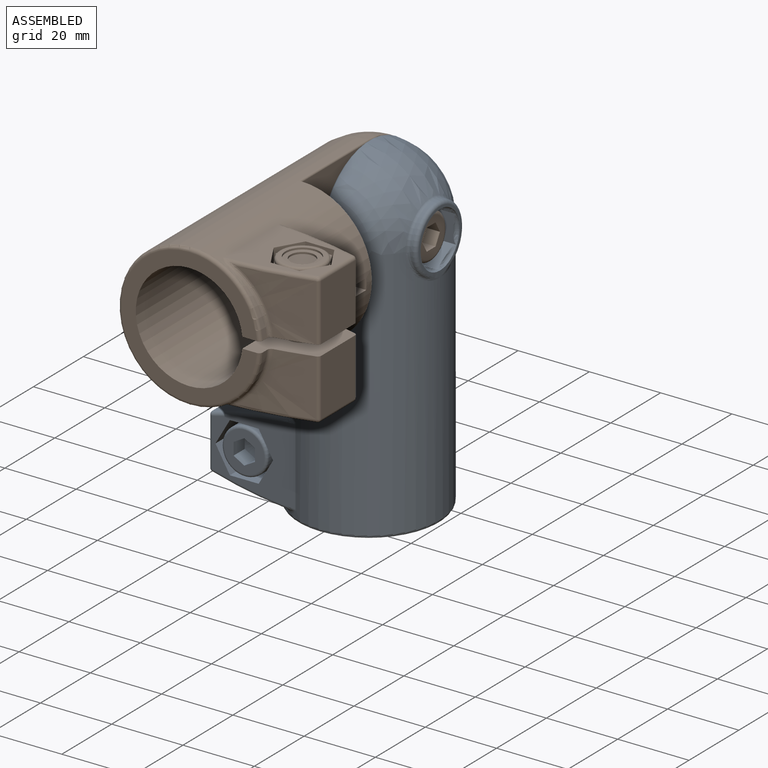
[diagram: assembled view]
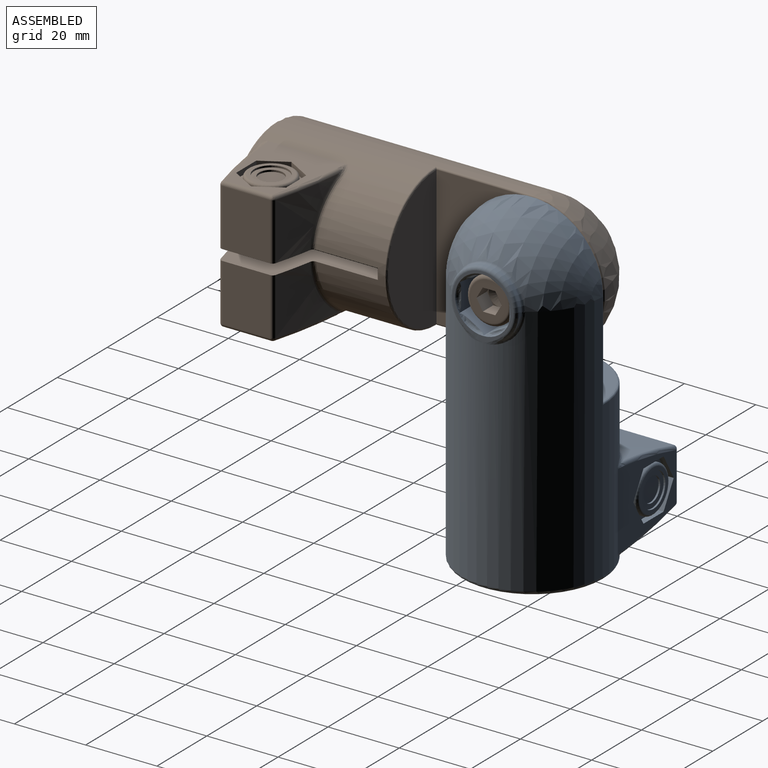
[diagram: assembled view, second angle]
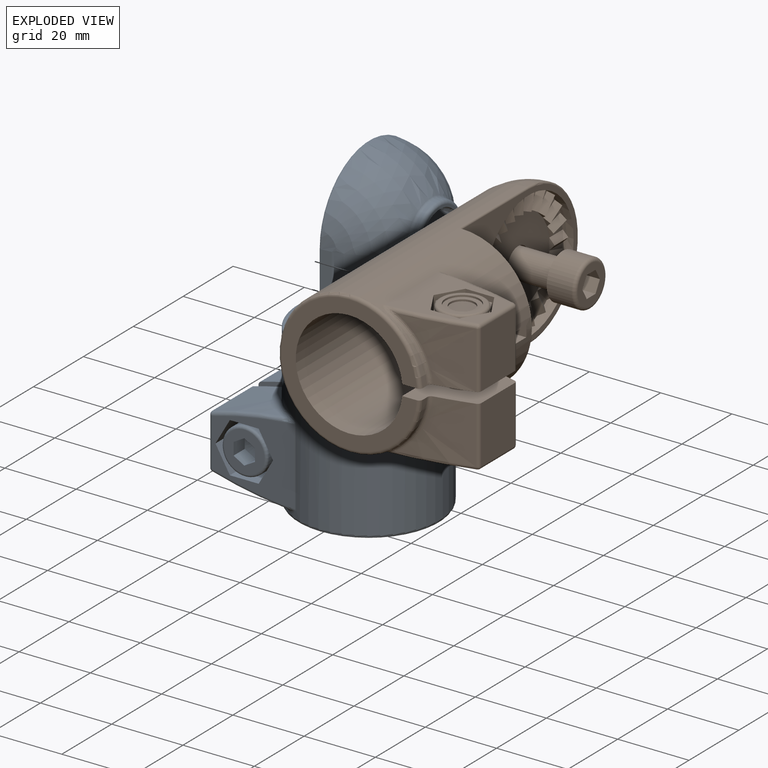
[diagram: exploded view]
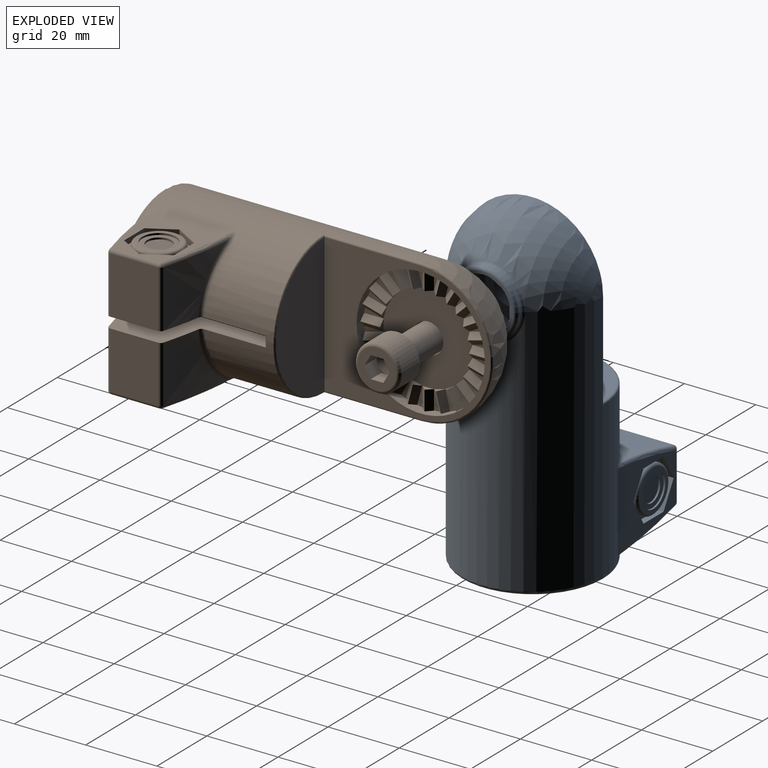
[diagram: exploded view, second angle]
ASSEMBLY  parts=2 mates=2
PART A: 136 faces, bbox 54.6x44.3x94.6 mm
  f0: cylinder r=0.5mm len=27.5mm, axis (0,0,1), area 21.7mm2, adj f1,f2,f18,f41,f48
  f1: torus R=19.5mm, axis (0,0,-1), area 49.2mm2, adj f0,f18,f48,f128
  f2: torus R=19.49mm, axis (1,0,0), area 49.7mm2, adj f0,f19,f41,f128
  f3: torus R=8.5mm, axis (-1,0,0), area 68.3mm2, adj f15,f50,f126,f127,f130,f134
  f4: torus R=19mm, axis (0,0,-1), area 189.1mm2, adj f18,f42,f58,f59
  f5: torus R=6.79mm, axis (1,0,0), area 7.6mm2, adj f39,f50,f56
  f6: cylinder r=3.4mm len=6.8mm, axis (0,-1,0), area 10.7mm2, adj f95,f96
  f7: cylinder r=4.75mm len=9.5mm, axis (0,-1,0), area 14.9mm2, adj f94,f95
  f8: torus R=5.75mm, axis (0,-1,0), area 46.1mm2, adj f9,f94
  f9: cylinder r=6.5mm len=13mm, axis (0,-1,0), area 18.4mm2, adj f8,f23,f24,f25,f26,f27,f28
  f10: cone r=1880.73mm half-angle=62deg, axis (0,-1,0), area 42.7mm2, adj f81,f82,f83,f84,f85,f86
  f11: torus R=5.65mm, axis (0,1,0), area 45.4mm2, adj f13,f73
  f12: cylinder r=4mm len=21mm, axis (0,-1,0), area 527.8mm2, adj f74,f87
  f13: cylinder r=6.4mm len=12.8mm, axis (0,-1,0), area 291.5mm2, adj f11,f30
  f14: cylinder r=15mm len=42.5mm, axis (0,0,-1), area 3877.8mm2, adj f42,f58,f59,f60
  f15: cylinder r=9.5mm len=19mm, axis (1,0,0), area 28.5mm2, adj f3,f131,f133,f135
  f16: cylinder r=12.5mm len=25mm, axis (1,0,0), area 117.8mm2, adj f47,f49
  f17: cylinder r=16.5mm len=33mm, axis (1,0,0), area 155.5mm2, adj f41,f49
  f18: cylinder r=20mm len=71mm, axis (0,0,1), area 5842.3mm2, adj f0,f1,f4,f19,f58,f59,f60,f99
  f19: sphere r=20mm, area 1056.9mm2, adj f2,f18,f133
  f20: cylinder r=4.25mm len=9.5mm, axis (-1,0,0), area 253.7mm2, adj f47,f51
  f21: cylinder r=4.25mm len=9mm, axis (0,-1,0), area 240.3mm2, adj f59,f74
  f22: cylinder r=4.25mm len=9mm, axis (0,-1,0), area 240.3mm2, adj f58,f87
  f23: plane 5.63x3.25mm, normal (0,1,0), area 2.3mm2, adj f9,f89,f90
  f24: plane 5.63x3.25mm, normal (0,1,0), area 2.3mm2, adj f9,f88,f89
  f25: plane 6.5x1.88mm, normal (0,1,0), area 2.3mm2, adj f9,f88,f93
  f26: plane 5.63x3.25mm, normal (0,1,0), area 2.3mm2, adj f9,f92,f93
  f27: plane 5.63x3.25mm, normal (0,1,0), area 2.3mm2, adj f9,f91,f92
  f28: plane 6.5x1.88mm, normal (0,1,0), area 2.3mm2, adj f9,f90,f91
  f29: plane 16.17x14mm, normal (0,1,0), area 23.4mm2, adj f67,f68,f69,f70,f71,f72,f88,f89
  f30: plane 16.17x14mm, normal (0,-1,0), area 41.1mm2, adj f13,f61,f62,f63,f64,f65,f66
  f31: plane 23.21x21.47mm, normal (0,1,0), area 254.9mm2, adj f67,f68,f69,f70,f71,f72,f100,f101
  f32: cylinder r=116.03mm len=19.76mm, axis (0,1,0), area 220.5mm2, adj f58,f102,f106,f108
  f33: cylinder r=116.03mm len=19.76mm, axis (0,1,0), area 220.5mm2, adj f58,f97,f99,f100
  f34: plane 16x13.49mm, normal (-1,0,0), area 215.8mm2, adj f58,f97,f101,f102
  f35: plane 11.5x7.75mm, normal (0,-0.5,-0.87), area 75mm2, adj f36,f40,f51,f52,f122
  f36: plane 11.5x8.79mm, normal (0,-1,0), area 75mm2, adj f35,f37,f51,f53,f121
  f37: plane 11.5x7.75mm, normal (0,-0.5,0.87), area 75mm2, adj f36,f38,f51,f54,f123
  f38: plane 11.5x7.75mm, normal (0,0.5,0.87), area 75mm2, adj f37,f39,f51,f55,f125
  f39: plane 11.5x8.79mm, normal (0,1,0), area 75mm2, adj f5,f38,f40,f51,f56
  f40: plane 11.5x7.75mm, normal (0,0.5,-0.87), area 75mm2, adj f35,f39,f51,f57,f124
  f41: plane 46.49x38.99mm, normal (-1,0,0), area 794.3mm2, adj f0,f2,f17,f48,f128
  f42: plane 38x37.94mm, normal (0,0,-1), area 415.2mm2, adj f4,f14,f58,f59
  f43: cylinder r=116.03mm len=19.76mm, axis (0,1,0), area 220.5mm2, adj f59,f111,f117,f120
  f44: cylinder r=116.03mm len=19.76mm, axis (0,1,0), area 220.5mm2, adj f59,f109,f113,f114
  f45: plane 16x13.49mm, normal (-1,0,0), area 215.8mm2, adj f59,f109,f111,f112
  f46: plane 23.21x21.47mm, normal (0,-1,0), area 254.9mm2, adj f61,f62,f63,f64,f65,f66,f112,f113
  f47: plane 25x25mm, normal (-1,0,0), area 434.1mm2, adj f16,f20
  f48: plane 39x19.5mm, normal (0,0,1), area 597.3mm2, adj f0,f1,f41,f128
  f49: plane 33x33mm, normal (-1,0,0), area 364.4mm2, adj f16,f17
  f50: plane 18.28x17.28mm, normal (1,0,0), area 40.7mm2, adj f3,f5,f121,f122,f123,f124,f125,f126
  f51: plane 15.59x13.5mm, normal (1,0,0), area 101.1mm2, adj f20,f35,f36,f37,f38,f39,f40
  f52: plane 1.34x0.77mm, normal (1,0,0), area 0mm2, adj f35,f122
  f53: plane 1.55x0.04mm, normal (1,0,0), area 0mm2, adj f36,f121
  f54: plane 1.34x0.77mm, normal (1,0,0), area 0mm2, adj f37,f123
  f55: plane 1.34x0.77mm, normal (1,0,0), area 0mm2, adj f38,f125
  f56: plane 1.55x0.04mm, normal (1,0,0), area 0mm2, adj f5,f39
  f57: plane 1.34x0.77mm, normal (1,0,0), area 0mm2, adj f40,f124
  f58: plane 42.53x17.11mm, normal (0,-1,0), area 373.4mm2, adj f4,f14,f18,f22,f32,f33,f34,f42
  f59: plane 42.53x17.11mm, normal (0,1,0), area 373.4mm2, adj f4,f14,f18,f21,f42,f43,f44,f45
  f60: plane 35x30mm, normal (0,0,-1), area 721.9mm2, adj f14,f18,f58,f59
  f61: plane 8x7mm, normal (0.87,0,-0.5), area 64.7mm2, adj f30,f46,f62,f66
  f62: plane 8.08x8mm, normal (0,0,-1), area 64.7mm2, adj f30,f46,f61,f63
  f63: plane 8x7mm, normal (-0.87,0,-0.5), area 64.7mm2, adj f30,f46,f62,f64
  f64: plane 8x7mm, normal (-0.87,0,0.5), area 64.7mm2, adj f30,f46,f63,f65
  f65: plane 8.08x8mm, normal (0,0,1), area 64.7mm2, adj f30,f46,f64,f66
  f66: plane 8x7mm, normal (0.87,0,0.5), area 64.7mm2, adj f30,f46,f61,f65
  f67: plane 8x7mm, normal (0.87,0,-0.5), area 64.7mm2, adj f29,f31,f68,f72
  f68: plane 8x7mm, normal (0.87,0,0.5), area 64.7mm2, adj f29,f31,f67,f69
  f69: plane 8.08x8mm, normal (0,0,1), area 64.7mm2, adj f29,f31,f68,f70
  f70: plane 8x7mm, normal (-0.87,0,0.5), area 64.7mm2, adj f29,f31,f69,f71
  f71: plane 8x7mm, normal (-0.87,0,-0.5), area 64.7mm2, adj f29,f31,f70,f72
  f72: plane 8.08x8mm, normal (0,0,-1), area 64.7mm2, adj f29,f31,f67,f71
  f73: plane 11.3x11.3mm, normal (0,-1,0), area 69.1mm2, adj f11,f75,f76,f77,f78,f79,f80
  f74: plane 8.5x8.5mm, normal (0,1,0), area 6.5mm2, adj f12,f21
  f75: plane 4.5x3mm, normal (-0.5,0,-0.87), area 15.6mm2, adj f73,f76,f80,f81
  f76: plane 4.5x3.46mm, normal (-1,0,0), area 15.6mm2, adj f73,f75,f77,f86
  f77: plane 4.5x3mm, normal (-0.5,0,0.87), area 15.6mm2, adj f73,f76,f78,f85
  f78: plane 4.5x3mm, normal (0.5,0,0.87), area 15.6mm2, adj f73,f77,f79,f84
  f79: plane 4.5x3.46mm, normal (1,0,0), area 15.6mm2, adj f73,f78,f80,f83
  f80: plane 4.5x3mm, normal (0.5,0,-0.87), area 15.6mm2, adj f73,f75,f79,f82
  f81: plane 3x1.73mm, normal (0,1,0), area 1.1mm2, adj f10,f75
  f82: plane 3x1.73mm, normal (0,1,0), area 1.1mm2, adj f10,f80
  f83: plane 3.46x0.46mm, normal (0,1,0), area 1.1mm2, adj f10,f79
  f84: plane 3x1.73mm, normal (0,1,0), area 1.1mm2, adj f10,f78
  f85: plane 3x1.73mm, normal (0,1,0), area 1.1mm2, adj f10,f77
  f86: plane 3.46x0.46mm, normal (0,1,0), area 1.1mm2, adj f10,f76
  f87: plane 8.5x8.5mm, normal (0,-1,0), area 6.5mm2, adj f12,f22
  f88: plane 6.8x6.5mm, normal (0.87,0,-0.5), area 51mm2, adj f24,f25,f29,f89,f93
  f89: plane 7.51x6.8mm, normal (0,0,-1), area 51mm2, adj f23,f24,f29,f88,f90
  f90: plane 6.8x6.5mm, normal (-0.87,0,-0.5), area 51mm2, adj f23,f28,f29,f89,f91
  f91: plane 6.8x6.5mm, normal (-0.87,0,0.5), area 51mm2, adj f27,f28,f29,f90,f92
  f92: plane 7.51x6.8mm, normal (0,0,1), area 51mm2, adj f26,f27,f29,f91,f93
  f93: plane 6.8x6.5mm, normal (0.87,0,0.5), area 51mm2, adj f25,f26,f29,f88,f92
  f94: plane 11.5x11.5mm, normal (0,1,0), area 33mm2, adj f7,f8
  f95: plane 9.5x9.5mm, normal (0,1,0), area 34.6mm2, adj f6,f7
  f96: plane 6.8x6.8mm, normal (0,1,0), area 36.3mm2, adj f6
  f97: cylinder r=1mm len=16mm, axis (0,1,0), area 20.8mm2, adj f33,f34,f58,f98
  f98: sphere r=1mm, area 0.9mm2, adj f97,f100,f101
  f99: bspline ~16.07x9.71mm, area 26.9mm2, adj f18,f33,f58,f103
  f100: torus R=115.03mm, axis (0,-1,0), area 34.4mm2, adj f31,f33,f98,f103
  f101: cylinder r=1mm len=13.49mm, axis (0,0,-1), area 21.2mm2, adj f31,f34,f98,f104
  f102: cylinder r=1mm len=16mm, axis (0,1,0), area 20.8mm2, adj f32,f34,f58,f104
  f103: bspline ~4.09x1.9mm, area 4.1mm2, adj f18,f99,f100,f105
  f104: sphere r=1mm, area 0.9mm2, adj f101,f102,f106
  f105: cylinder r=1mm len=21.47mm, axis (0,0,1), area 8.2mm2, adj f18,f31,f103,f107
  f106: torus R=115.03mm, axis (0,-1,0), area 34.4mm2, adj f31,f32,f104,f107
  f107: bspline ~4.09x1.9mm, area 4.1mm2, adj f18,f105,f106,f108
  f108: bspline ~16.07x9.71mm, area 26.9mm2, adj f18,f32,f58,f107
  f109: cylinder r=1mm len=16mm, axis (0,1,0), area 20.8mm2, adj f44,f45,f59,f110
  f110: sphere r=1mm, area 1.3mm2, adj f109,f112,f113
  f111: cylinder r=1mm len=16mm, axis (0,1,0), area 20.8mm2, adj f43,f45,f59,f115
  f112: cylinder r=1mm len=13.49mm, axis (0,0,1), area 21.2mm2, adj f45,f46,f110,f115
  f113: torus R=115.03mm, axis (0,-1,0), area 34.4mm2, adj f44,f46,f110,f116
  f114: bspline ~16.18x9.79mm, area 26.9mm2, adj f18,f44,f59,f116
  f115: sphere r=1mm, area 1.3mm2, adj f111,f112,f117
  f116: bspline ~4.09x1.9mm, area 4.1mm2, adj f18,f113,f114,f118
  f117: torus R=115.03mm, axis (0,-1,0), area 34.4mm2, adj f43,f46,f115,f119
  f118: cylinder r=1mm len=21.47mm, axis (0,0,1), area 8.2mm2, adj f18,f46,f116,f119
  f119: bspline ~4.09x1.9mm, area 4.1mm2, adj f18,f117,f118,f120
  f120: bspline ~16.18x9.79mm, area 26.9mm2, adj f18,f43,f59,f119
  f121: torus R=6.79mm, axis (1,0,0), area 7.6mm2, adj f36,f50,f53
  f122: torus R=6.79mm, axis (1,0,0), area 7.6mm2, adj f35,f50,f52
  f123: torus R=6.79mm, axis (1,0,0), area 7.6mm2, adj f37,f50,f54
  f124: torus R=6.79mm, axis (1,0,0), area 7.6mm2, adj f40,f50,f57
  f125: torus R=6.79mm, axis (1,0,0), area 7.6mm2, adj f38,f50,f55
  f126: bspline ~6.18x3.09mm, area 2.4mm2, adj f3,f50,f132
  f127: bspline ~6.18x3.09mm, area 2.4mm2, adj f3,f50,f129
  f128: cylinder r=0.5mm len=27.5mm, axis (0,0,1), area 21.7mm2, adj f1,f2,f18,f41,f48
  f129: bspline ~6.45x2.47mm, area 2.2mm2, adj f18,f127,f130
  f130: bspline ~2.78x2.34mm, area 3.2mm2, adj f3,f18,f129,f131
  f131: bspline ~5.5x1.99mm, area 6.1mm2, adj f15,f18,f130,f133
  f132: bspline ~6.45x2.47mm, area 2.2mm2, adj f18,f126,f134
  f133: torus R=10.5mm, axis (-1,0,0), area 31.8mm2, adj f15,f19,f131,f135
  f134: bspline ~2.78x2.34mm, area 3.2mm2, adj f3,f18,f132,f135
  f135: bspline ~5.5x1.99mm, area 6.1mm2, adj f15,f18,f133,f134
PART B: 258 faces, bbox 54.6x44.3x94.6 mm
  f0: cylinder r=4mm len=19.5mm, axis (1,0,0), area 490.1mm2, adj f10,f19
  f1: cone r=3.05mm half-angle=62deg, axis (1,0,0), area 33.1mm2, adj f4,f5,f6,f7,f8,f9
  f2: torus R=5.4mm, axis (1,0,0), area 59.6mm2, adj f3,f11
  f3: cylinder r=6.4mm len=12.8mm, axis (-1,0,0), area 281.5mm2, adj f2,f10
  f4: plane 2.64x1.53mm, normal (1,0,0), area 0.5mm2, adj f1,f15,f16
  f5: plane 2.64x1.53mm, normal (1,0,0), area 0.5mm2, adj f1,f14,f15
  f6: plane 3.05x0.88mm, normal (1,0,0), area 0.5mm2, adj f1,f13,f14
  f7: plane 2.64x1.53mm, normal (1,0,0), area 0.5mm2, adj f1,f12,f13
  f8: plane 2.64x1.53mm, normal (1,0,0), area 0.5mm2, adj f1,f12,f17
  f9: plane 3.05x0.88mm, normal (1,0,0), area 0.5mm2, adj f1,f16,f17
  f10: plane 12.8x12.8mm, normal (-1,0,0), area 78.4mm2, adj f0,f3
  f11: plane 10.8x10.8mm, normal (1,0,0), area 59.4mm2, adj f2,f12,f13,f14,f15,f16,f17
  f12: plane 4.2x3.52mm, normal (0,-1,0), area 14.8mm2, adj f7,f8,f11,f13,f17
  f13: plane 4.2x3.05mm, normal (0,-0.5,0.87), area 14.8mm2, adj f6,f7,f11,f12,f14
  f14: plane 4.2x3.05mm, normal (0,0.5,0.87), area 14.8mm2, adj f5,f6,f11,f13,f15
  f15: plane 4.2x3.52mm, normal (0,1,0), area 14.8mm2, adj f4,f5,f11,f14,f16
  f16: plane 4.2x3.05mm, normal (0,0.5,-0.87), area 14.8mm2, adj f4,f9,f11,f15,f17
  f17: plane 4.2x3.05mm, normal (0,-0.5,-0.87), area 14.8mm2, adj f8,f9,f11,f12,f16
  f18: cylinder r=4.38mm len=8.75mm, axis (-1,0,0), area 13.7mm2, adj f22,f47
  f19: cone r=4.5mm half-angle=45deg, axis (1,0,0), area 18.9mm2, adj f0,f48
  f20: torus R=5.2mm, axis (-1,0,0), area 74mm2, adj f21,f22
  f21: cylinder r=6.45mm len=12.9mm, axis (1,0,0), area 30.4mm2, adj f20,f35,f36,f37,f38,f39,f40
  f22: plane 10.4x10.4mm, normal (-1,0,0), area 24.8mm2, adj f18,f20
  f23: cone r=6.45mm half-angle=45deg, axis (-1,0,0), area 3.1mm2, adj f30,f41,f46,f170
  f24: cone r=6.45mm half-angle=45deg, axis (-1,0,0), area 3.1mm2, adj f29,f45,f46,f170
  f25: cone r=6.45mm half-angle=45deg, axis (-1,0,0), area 3.1mm2, adj f31,f44,f45,f170
  f26: cone r=6.45mm half-angle=45deg, axis (-1,0,0), area 3.1mm2, adj f32,f43,f44,f170
  f27: cone r=6.45mm half-angle=45deg, axis (-1,0,0), area 3.1mm2, adj f33,f42,f43,f170
  f28: cone r=6.45mm half-angle=45deg, axis (-1,0,0), area 3.1mm2, adj f34,f41,f42,f170
  f29: cylinder r=7.3mm len=4.1mm, axis (1,0,0), area 2.2mm2, adj f24,f35,f45,f46
  f30: cylinder r=7.3mm len=4.1mm, axis (1,0,0), area 2.2mm2, adj f23,f36,f41,f46
  f31: cylinder r=7.3mm len=4.1mm, axis (1,0,0), area 2.2mm2, adj f25,f37,f44,f45
  f32: cylinder r=7.3mm len=4.1mm, axis (1,0,0), area 2.2mm2, adj f26,f38,f43,f44
  f33: cylinder r=7.3mm len=4.1mm, axis (1,0,0), area 2.2mm2, adj f27,f39,f42,f43
  f34: cylinder r=7.3mm len=4.1mm, axis (1,0,0), area 2.2mm2, adj f28,f40,f41,f42
  f35: cone r=7.3mm half-angle=45deg, axis (1,0,0), area 3.1mm2, adj f21,f29,f45,f46
  f36: cone r=7.3mm half-angle=45deg, axis (1,0,0), area 3.1mm2, adj f21,f30,f41,f46
  f37: cone r=7.3mm half-angle=45deg, axis (1,0,0), area 3.1mm2, adj f21,f31,f44,f45
  f38: cone r=7.3mm half-angle=45deg, axis (1,0,0), area 3.1mm2, adj f21,f32,f43,f44
  f39: cone r=7.3mm half-angle=45deg, axis (1,0,0), area 3.1mm2, adj f21,f33,f42,f43
  f40: cone r=7.3mm half-angle=45deg, axis (1,0,0), area 3.1mm2, adj f21,f34,f41,f42
  f41: plane 6.84x5.8mm, normal (0,-1,0), area 35.7mm2, adj f23,f28,f30,f34,f36,f40
  f42: plane 5.92x5.8mm, normal (0,-0.5,0.87), area 35.7mm2, adj f27,f28,f33,f34,f39,f40
  f43: plane 5.92x5.8mm, normal (0,0.5,0.87), area 35.7mm2, adj f26,f27,f32,f33,f38,f39
  f44: plane 6.84x5.8mm, normal (0,1,0), area 35.7mm2, adj f25,f26,f31,f32,f37,f38
  f45: plane 5.92x5.8mm, normal (0,0.5,-0.87), area 35.7mm2, adj f24,f25,f29,f31,f35,f37
  f46: plane 5.92x5.8mm, normal (0,-0.5,-0.87), area 35.7mm2, adj f23,f24,f29,f30,f35,f36
  f47: plane 8.75x8.75mm, normal (-1,0,0), area 9.9mm2, adj f18,f257
  f48: plane 9x9mm, normal (-1,0,0), area 6.9mm2, adj f19,f68
  f49: cylinder r=0.5mm len=27.5mm, axis (0,0,-1), area 21.7mm2, adj f50,f51,f66,f94,f95
  f50: torus R=19.5mm, axis (0,0,1), area 49.2mm2, adj f49,f66,f95,f247
  f51: torus R=19.49mm, axis (-1,0,0), area 49.7mm2, adj f49,f67,f94,f247
  f52: torus R=8.5mm, axis (1,0,0), area 68.3mm2, adj f64,f169,f245,f246,f249,f253
  f53: torus R=19mm, axis (0,0,1), area 189.1mm2, adj f66,f89,f177,f178
  f54: torus R=6.79mm, axis (-1,0,0), area 7.6mm2, adj f87,f169,f175
  f55: cylinder r=3.4mm len=6.8mm, axis (0,-1,0), area 10.7mm2, adj f214,f215
  f56: cylinder r=4.75mm len=9.5mm, axis (0,-1,0), area 14.9mm2, adj f213,f214
  f57: torus R=5.75mm, axis (0,-1,0), area 46.1mm2, adj f58,f213
  f58: cylinder r=6.5mm len=13mm, axis (0,-1,0), area 18.4mm2, adj f57,f71,f72,f73,f74,f75,f76
  f59: cone r=1880.73mm half-angle=62deg, axis (0,-1,0), area 42.7mm2, adj f200,f201,f202,f203,f204,f205
  f60: torus R=5.65mm, axis (0,1,0), area 45.4mm2, adj f62,f192
  f61: cylinder r=4mm len=21mm, axis (0,-1,0), area 527.8mm2, adj f193,f206
  f62: cylinder r=6.4mm len=12.8mm, axis (0,-1,0), area 291.5mm2, adj f60,f78
  f63: cylinder r=15mm len=42.5mm, axis (0,0,1), area 3877.8mm2, adj f89,f177,f178,f179
  f64: cylinder r=9.5mm len=19mm, axis (-1,0,0), area 28.5mm2, adj f52,f250,f252,f254
  f65: cylinder r=18mm len=36mm, axis (1,0,0), area 280.7mm2, adj f94,f96,f98,f99,f101,f102,f104,f105
  f66: cylinder r=20mm len=71mm, axis (0,0,-1), area 5842.3mm2, adj f49,f50,f53,f67,f177,f178,f179,f218
  f67: sphere r=20mm, area 1056.9mm2, adj f51,f66,f252
  f68: cylinder r=4.25mm len=8.5mm, axis (1,0,0), area 173.6mm2, adj f48,f96
  f69: cylinder r=4.25mm len=9mm, axis (0,-1,0), area 240.3mm2, adj f178,f193
  f70: cylinder r=4.25mm len=9mm, axis (0,-1,0), area 240.3mm2, adj f177,f206
  f71: plane 5.63x3.25mm, normal (0,1,0), area 2.3mm2, adj f58,f208,f209
  f72: plane 5.63x3.25mm, normal (0,1,0), area 2.3mm2, adj f58,f207,f208
  f73: plane 6.5x1.88mm, normal (0,1,0), area 2.3mm2, adj f58,f207,f212
  f74: plane 5.63x3.25mm, normal (0,1,0), area 2.3mm2, adj f58,f211,f212
  f75: plane 5.63x3.25mm, normal (0,1,0), area 2.3mm2, adj f58,f210,f211
  f76: plane 6.5x1.88mm, normal (0,1,0), area 2.3mm2, adj f58,f209,f210
  f77: plane 16.17x14mm, normal (0,1,0), area 23.4mm2, adj f186,f187,f188,f189,f190,f191,f207,f208
  f78: plane 16.17x14mm, normal (0,-1,0), area 41.1mm2, adj f62,f180,f181,f182,f183,f184,f185
  f79: plane 23.21x21.47mm, normal (0,1,0), area 254.9mm2, adj f186,f187,f188,f189,f190,f191,f219,f220
  f80: cylinder r=116.03mm len=19.76mm, axis (0,1,0), area 220.5mm2, adj f177,f221,f225,f227
  f81: cylinder r=116.03mm len=19.76mm, axis (0,1,0), area 220.5mm2, adj f177,f216,f218,f219
  f82: plane 16x13.49mm, normal (1,0,0), area 215.8mm2, adj f177,f216,f220,f221
  f83: plane 11.5x7.75mm, normal (0,-0.5,0.87), area 75mm2, adj f84,f88,f170,f171,f241
  f84: plane 11.5x8.79mm, normal (0,-1,0), area 75mm2, adj f83,f85,f170,f172,f240
  f85: plane 11.5x7.75mm, normal (0,-0.5,-0.87), area 75mm2, adj f84,f86,f170,f173,f242
  f86: plane 11.5x7.75mm, normal (0,0.5,-0.87), area 75mm2, adj f85,f87,f170,f174,f244
  f87: plane 11.5x8.79mm, normal (0,1,0), area 75mm2, adj f54,f86,f88,f170,f175
  f88: plane 11.5x7.75mm, normal (0,0.5,0.87), area 75mm2, adj f83,f87,f170,f176,f243
  f89: plane 38x37.94mm, normal (0,0,1), area 415.2mm2, adj f53,f63,f177,f178
  f90: cylinder r=116.03mm len=19.76mm, axis (0,1,0), area 220.5mm2, adj f178,f230,f236,f239
  f91: cylinder r=116.03mm len=19.76mm, axis (0,1,0), area 220.5mm2, adj f178,f228,f232,f233
  f92: plane 16x13.49mm, normal (1,0,0), area 215.8mm2, adj f178,f228,f230,f231
  f93: plane 23.21x21.47mm, normal (0,-1,0), area 254.9mm2, adj f180,f181,f182,f183,f184,f185,f231,f232
  f94: plane 46.49x38.99mm, normal (1,0,0), area 631.7mm2, adj f49,f51,f65,f95,f247
  f95: plane 39x19.5mm, normal (0,0,-1), area 597.3mm2, adj f49,f50,f94,f247
  f96: plane 35.85x35.85mm, normal (1,0,0), area 534mm2, adj f65,f68,f97,f98,f99,f100,f101,f102
  f97: plane 3.25x1.5mm, normal (0,0,1), area 2.4mm2, adj f96,f98,f99
  f98: plane 5.5x1.63mm, normal (0.73,-0.68,0), area 12.1mm2, adj f65,f96,f97,f99
  f99: plane 5.5x1.63mm, normal (0.73,0.68,0), area 12.1mm2, adj f65,f96,f97,f98
  f100: plane 3.14x1.5mm, normal (0,-0.26,0.97), area 2.4mm2, adj f96,f101,f102
  f101: plane 5.66x2.99mm, normal (0.73,-0.66,-0.18), area 12.1mm2, adj f65,f96,f100,f102
  f102: plane 5.73x2.98mm, normal (0.73,0.66,0.18), area 12.1mm2, adj f65,f96,f100,f101
  f103: plane 2.81x1.63mm, normal (0,-0.5,0.87), area 2.4mm2, adj f96,f104,f105
  f104: plane 5.51x4.16mm, normal (0.73,-0.59,-0.34), area 12.1mm2, adj f65,f96,f103,f105
  f105: plane 5.58x4.12mm, normal (0.73,0.59,0.34), area 12.1mm2, adj f65,f96,f103,f104
  f106: plane 2.3x2.3mm, normal (0,-0.71,0.71), area 2.4mm2, adj f96,f107,f108
  f107: plane 5.04x4.99mm, normal (0.73,-0.48,-0.48), area 12.1mm2, adj f65,f96,f106,f108
  f108: plane 5.04x4.99mm, normal (0.73,0.48,0.48), area 12.1mm2, adj f65,f96,f106,f107
  f109: plane 2.81x1.63mm, normal (0,-0.87,0.5), area 2.4mm2, adj f96,f110,f111
  f110: plane 5.58x4.12mm, normal (0.73,-0.34,-0.59), area 12.1mm2, adj f65,f96,f109,f111
  f111: plane 5.51x4.16mm, normal (0.73,0.34,0.59), area 12.1mm2, adj f65,f96,f109,f110
  f112: plane 3.14x1.5mm, normal (0,-0.97,0.26), area 2.4mm2, adj f96,f113,f114
  f113: plane 5.73x2.98mm, normal (0.73,-0.18,-0.66), area 12.1mm2, adj f65,f96,f112,f114
  f114: plane 5.66x2.99mm, normal (0.73,0.18,0.66), area 12.1mm2, adj f65,f96,f112,f113
  f115: plane 3.25x1.5mm, normal (0,-1,0), area 2.4mm2, adj f96,f116,f117
  f116: plane 5.5x1.63mm, normal (0.73,0,-0.68), area 12.1mm2, adj f65,f96,f115,f117
  f117: plane 5.5x1.63mm, normal (0.73,0,0.68), area 12.1mm2, adj f65,f96,f115,f116
  f118: plane 3.14x1.5mm, normal (0,-0.97,-0.26), area 2.4mm2, adj f96,f119,f120
  f119: plane 5.66x2.99mm, normal (0.73,0.18,-0.66), area 12.1mm2, adj f65,f96,f118,f120
  f120: plane 5.73x2.98mm, normal (0.73,-0.18,0.66), area 12.1mm2, adj f65,f96,f118,f119
  f121: plane 2.81x1.63mm, normal (0,-0.87,-0.5), area 2.4mm2, adj f96,f122,f123
  f122: plane 5.51x4.16mm, normal (0.73,0.34,-0.59), area 12.1mm2, adj f65,f96,f121,f123
  f123: plane 5.58x4.12mm, normal (0.73,-0.34,0.59), area 12.1mm2, adj f65,f96,f121,f122
  f124: plane 2.3x2.3mm, normal (0,-0.71,-0.71), area 2.4mm2, adj f96,f125,f126
  f125: plane 5.04x4.99mm, normal (0.73,0.48,-0.48), area 12.1mm2, adj f65,f96,f124,f126
  f126: plane 5.04x4.99mm, normal (0.73,-0.48,0.48), area 12.1mm2, adj f65,f96,f124,f125
  f127: plane 2.81x1.63mm, normal (0,-0.5,-0.87), area 2.4mm2, adj f96,f128,f129
  f128: plane 5.58x4.12mm, normal (0.73,0.59,-0.34), area 12.1mm2, adj f65,f96,f127,f129
  f129: plane 5.51x4.16mm, normal (0.73,-0.59,0.34), area 12.1mm2, adj f65,f96,f127,f128
  f130: plane 3.14x1.5mm, normal (0,-0.26,-0.97), area 2.4mm2, adj f96,f131,f132
  f131: plane 5.73x2.98mm, normal (0.73,0.66,-0.18), area 12.1mm2, adj f65,f96,f130,f132
  f132: plane 5.66x2.99mm, normal (0.73,-0.66,0.18), area 12.1mm2, adj f65,f96,f130,f131
  f133: plane 3.25x1.5mm, normal (0,0,-1), area 2.4mm2, adj f96,f134,f135
  f134: plane 5.5x1.63mm, normal (0.73,0.68,0), area 12.1mm2, adj f65,f96,f133,f135
  f135: plane 5.5x1.63mm, normal (0.73,-0.68,0), area 12.1mm2, adj f65,f96,f133,f134
  f136: plane 3.14x1.5mm, normal (0,0.26,-0.97), area 2.4mm2, adj f96,f137,f138
  f137: plane 5.66x2.99mm, normal (0.73,0.66,0.18), area 12.1mm2, adj f65,f96,f136,f138
  f138: plane 5.73x2.98mm, normal (0.73,-0.66,-0.18), area 12.1mm2, adj f65,f96,f136,f137
  f139: plane 2.81x1.63mm, normal (0,0.5,-0.87), area 2.4mm2, adj f96,f140,f141
  f140: plane 5.51x4.16mm, normal (0.73,0.59,0.34), area 12.1mm2, adj f65,f96,f139,f141
  f141: plane 5.58x4.12mm, normal (0.73,-0.59,-0.34), area 12.1mm2, adj f65,f96,f139,f140
  f142: plane 2.3x2.3mm, normal (0,0.71,-0.71), area 2.4mm2, adj f96,f143,f144
  f143: plane 5.04x4.99mm, normal (0.73,0.48,0.48), area 12.1mm2, adj f65,f96,f142,f144
  f144: plane 5.04x4.99mm, normal (0.73,-0.48,-0.48), area 12.1mm2, adj f65,f96,f142,f143
  f145: plane 2.81x1.63mm, normal (0,0.87,-0.5), area 2.4mm2, adj f96,f146,f147
  f146: plane 5.58x4.12mm, normal (0.73,0.34,0.59), area 12.1mm2, adj f65,f96,f145,f147
  f147: plane 5.51x4.16mm, normal (0.73,-0.34,-0.59), area 12.1mm2, adj f65,f96,f145,f146
  f148: plane 3.14x1.5mm, normal (0,0.97,-0.26), area 2.4mm2, adj f96,f149,f150
  f149: plane 5.73x2.98mm, normal (0.73,0.18,0.66), area 12.1mm2, adj f65,f96,f148,f150
  f150: plane 5.66x2.99mm, normal (0.73,-0.18,-0.66), area 12.1mm2, adj f65,f96,f148,f149
  f151: plane 3.25x1.5mm, normal (0,1,0), area 2.4mm2, adj f96,f152,f153
  f152: plane 5.5x1.63mm, normal (0.73,0,0.68), area 12.1mm2, adj f65,f96,f151,f153
  f153: plane 5.5x1.63mm, normal (0.73,0,-0.68), area 12.1mm2, adj f65,f96,f151,f152
  f154: plane 3.14x1.5mm, normal (0,0.97,0.26), area 2.4mm2, adj f96,f155,f156
  f155: plane 5.66x2.99mm, normal (0.73,-0.18,0.66), area 12.1mm2, adj f65,f96,f154,f156
  f156: plane 5.73x2.98mm, normal (0.73,0.18,-0.66), area 12.1mm2, adj f65,f96,f154,f155
  f157: plane 2.81x1.63mm, normal (0,0.87,0.5), area 2.4mm2, adj f96,f158,f159
  f158: plane 5.51x4.16mm, normal (0.73,-0.34,0.59), area 12.1mm2, adj f65,f96,f157,f159
  f159: plane 5.58x4.12mm, normal (0.73,0.34,-0.59), area 12.1mm2, adj f65,f96,f157,f158
  f160: plane 2.3x2.3mm, normal (0,0.71,0.71), area 2.4mm2, adj f96,f161,f162
  f161: plane 5.04x4.99mm, normal (0.73,-0.48,0.48), area 12.1mm2, adj f65,f96,f160,f162
  f162: plane 5.04x4.99mm, normal (0.73,0.48,-0.48), area 12.1mm2, adj f65,f96,f160,f161
  f163: plane 2.81x1.63mm, normal (0,0.5,0.87), area 2.4mm2, adj f96,f164,f165
  f164: plane 5.58x4.12mm, normal (0.73,-0.59,0.34), area 12.1mm2, adj f65,f96,f163,f165
  f165: plane 5.51x4.16mm, normal (0.73,0.59,-0.34), area 12.1mm2, adj f65,f96,f163,f164
  f166: plane 3.14x1.5mm, normal (0,0.26,0.97), area 2.4mm2, adj f96,f167,f168
  f167: plane 5.73x2.98mm, normal (0.73,-0.66,0.18), area 12.1mm2, adj f65,f96,f166,f168
  f168: plane 5.66x2.99mm, normal (0.73,0.66,-0.18), area 12.1mm2, adj f65,f96,f166,f167
  f169: plane 18.28x17.28mm, normal (-1,0,0), area 40.7mm2, adj f52,f54,f240,f241,f242,f243,f244,f245
  f170: plane 15.59x13.5mm, normal (-1,0,0), area 27.1mm2, adj f23,f24,f25,f26,f27,f28,f83,f84
  f171: plane 1.34x0.77mm, normal (-1,0,0), area 0mm2, adj f83,f241
  f172: plane 1.55x0.04mm, normal (-1,0,0), area 0mm2, adj f84,f240
  f173: plane 1.34x0.77mm, normal (-1,0,0), area 0mm2, adj f85,f242
  f174: plane 1.34x0.77mm, normal (-1,0,0), area 0mm2, adj f86,f244
  f175: plane 1.55x0.04mm, normal (-1,0,0), area 0mm2, adj f54,f87
  f176: plane 1.34x0.77mm, normal (-1,0,0), area 0mm2, adj f88,f243
  f177: plane 42.53x17.11mm, normal (0,-1,0), area 373.4mm2, adj f53,f63,f66,f70,f80,f81,f82,f89
  f178: plane 42.53x17.11mm, normal (0,1,0), area 373.4mm2, adj f53,f63,f66,f69,f89,f90,f91,f92
  f179: plane 35x30mm, normal (0,0,1), area 721.9mm2, adj f63,f66,f177,f178
  f180: plane 8x7mm, normal (-0.87,0,0.5), area 64.7mm2, adj f78,f93,f181,f185
  f181: plane 8.08x8mm, normal (0,0,1), area 64.7mm2, adj f78,f93,f180,f182
  f182: plane 8x7mm, normal (0.87,0,0.5), area 64.7mm2, adj f78,f93,f181,f183
  f183: plane 8x7mm, normal (0.87,0,-0.5), area 64.7mm2, adj f78,f93,f182,f184
  f184: plane 8.08x8mm, normal (0,0,-1), area 64.7mm2, adj f78,f93,f183,f185
  f185: plane 8x7mm, normal (-0.87,0,-0.5), area 64.7mm2, adj f78,f93,f180,f184
  f186: plane 8x7mm, normal (-0.87,0,0.5), area 64.7mm2, adj f77,f79,f187,f191
  f187: plane 8x7mm, normal (-0.87,0,-0.5), area 64.7mm2, adj f77,f79,f186,f188
  f188: plane 8.08x8mm, normal (0,0,-1), area 64.7mm2, adj f77,f79,f187,f189
  f189: plane 8x7mm, normal (0.87,0,-0.5), area 64.7mm2, adj f77,f79,f188,f190
  f190: plane 8x7mm, normal (0.87,0,0.5), area 64.7mm2, adj f77,f79,f189,f191
  f191: plane 8.08x8mm, normal (0,0,1), area 64.7mm2, adj f77,f79,f186,f190
  f192: plane 11.3x11.3mm, normal (0,-1,0), area 69.1mm2, adj f60,f194,f195,f196,f197,f198,f199
  f193: plane 8.5x8.5mm, normal (0,1,0), area 6.5mm2, adj f61,f69
  f194: plane 4.5x3mm, normal (0.5,0,0.87), area 15.6mm2, adj f192,f195,f199,f200
  f195: plane 4.5x3.46mm, normal (1,0,0), area 15.6mm2, adj f192,f194,f196,f205
  f196: plane 4.5x3mm, normal (0.5,0,-0.87), area 15.6mm2, adj f192,f195,f197,f204
  f197: plane 4.5x3mm, normal (-0.5,0,-0.87), area 15.6mm2, adj f192,f196,f198,f203
  f198: plane 4.5x3.46mm, normal (-1,0,0), area 15.6mm2, adj f192,f197,f199,f202
  f199: plane 4.5x3mm, normal (-0.5,0,0.87), area 15.6mm2, adj f192,f194,f198,f201
  f200: plane 3x1.73mm, normal (0,1,0), area 1.1mm2, adj f59,f194
  f201: plane 3x1.73mm, normal (0,1,0), area 1.1mm2, adj f59,f199
  f202: plane 3.46x0.46mm, normal (0,1,0), area 1.1mm2, adj f59,f198
  f203: plane 3x1.73mm, normal (0,1,0), area 1.1mm2, adj f59,f197
  f204: plane 3x1.73mm, normal (0,1,0), area 1.1mm2, adj f59,f196
  f205: plane 3.46x0.46mm, normal (0,1,0), area 1.1mm2, adj f59,f195
  f206: plane 8.5x8.5mm, normal (0,-1,0), area 6.5mm2, adj f61,f70
  f207: plane 6.8x6.5mm, normal (-0.87,0,0.5), area 51mm2, adj f72,f73,f77,f208,f212
  f208: plane 7.51x6.8mm, normal (0,0,1), area 51mm2, adj f71,f72,f77,f207,f209
  f209: plane 6.8x6.5mm, normal (0.87,0,0.5), area 51mm2, adj f71,f76,f77,f208,f210
  f210: plane 6.8x6.5mm, normal (0.87,0,-0.5), area 51mm2, adj f75,f76,f77,f209,f211
  f211: plane 7.51x6.8mm, normal (0,0,-1), area 51mm2, adj f74,f75,f77,f210,f212
  f212: plane 6.8x6.5mm, normal (-0.87,0,-0.5), area 51mm2, adj f73,f74,f77,f207,f211
  f213: plane 11.5x11.5mm, normal (0,1,0), area 33mm2, adj f56,f57
  f214: plane 9.5x9.5mm, normal (0,1,0), area 34.6mm2, adj f55,f56
  f215: plane 6.8x6.8mm, normal (0,1,0), area 36.3mm2, adj f55
  f216: cylinder r=1mm len=16mm, axis (0,1,0), area 20.8mm2, adj f81,f82,f177,f217
  f217: sphere r=1mm, area 0.9mm2, adj f216,f219,f220
  f218: bspline ~16.07x9.71mm, area 26.9mm2, adj f66,f81,f177,f222
  f219: torus R=115.03mm, axis (0,-1,0), area 34.4mm2, adj f79,f81,f217,f222
  f220: cylinder r=1mm len=13.49mm, axis (0,0,1), area 21.2mm2, adj f79,f82,f217,f223
  f221: cylinder r=1mm len=16mm, axis (0,1,0), area 20.8mm2, adj f80,f82,f177,f223
  f222: bspline ~4.09x1.9mm, area 4.1mm2, adj f66,f218,f219,f224
  f223: sphere r=1mm, area 0.9mm2, adj f220,f221,f225
  f224: cylinder r=1mm len=21.47mm, axis (0,0,-1), area 8.2mm2, adj f66,f79,f222,f226
  f225: torus R=115.03mm, axis (0,-1,0), area 34.4mm2, adj f79,f80,f223,f226
  f226: bspline ~4.09x1.9mm, area 4.1mm2, adj f66,f224,f225,f227
  f227: bspline ~16.07x9.71mm, area 26.9mm2, adj f66,f80,f177,f226
  f228: cylinder r=1mm len=16mm, axis (0,1,0), area 20.8mm2, adj f91,f92,f178,f229
  f229: sphere r=1mm, area 1.3mm2, adj f228,f231,f232
  f230: cylinder r=1mm len=16mm, axis (0,1,0), area 20.8mm2, adj f90,f92,f178,f234
  f231: cylinder r=1mm len=13.49mm, axis (0,0,-1), area 21.2mm2, adj f92,f93,f229,f234
  f232: torus R=115.03mm, axis (0,-1,0), area 34.4mm2, adj f91,f93,f229,f235
  f233: bspline ~16.18x9.79mm, area 26.9mm2, adj f66,f91,f178,f235
  f234: sphere r=1mm, area 1.3mm2, adj f230,f231,f236
  f235: bspline ~4.09x1.9mm, area 4.1mm2, adj f66,f232,f233,f237
  f236: torus R=115.03mm, axis (0,-1,0), area 34.4mm2, adj f90,f93,f234,f238
  f237: cylinder r=1mm len=21.47mm, axis (0,0,-1), area 8.2mm2, adj f66,f93,f235,f238
  f238: bspline ~4.09x1.9mm, area 4.1mm2, adj f66,f236,f237,f239
  f239: bspline ~16.18x9.79mm, area 26.9mm2, adj f66,f90,f178,f238
  f240: torus R=6.79mm, axis (-1,0,0), area 7.6mm2, adj f84,f169,f172
  f241: torus R=6.79mm, axis (-1,0,0), area 7.6mm2, adj f83,f169,f171
  f242: torus R=6.79mm, axis (-1,0,0), area 7.6mm2, adj f85,f169,f173
  f243: torus R=6.79mm, axis (-1,0,0), area 7.6mm2, adj f88,f169,f176
  f244: torus R=6.79mm, axis (-1,0,0), area 7.6mm2, adj f86,f169,f174
  f245: bspline ~6.18x3.09mm, area 2.4mm2, adj f52,f169,f251
  f246: bspline ~6.18x3.09mm, area 2.4mm2, adj f52,f169,f248
  f247: cylinder r=0.5mm len=27.5mm, axis (0,0,-1), area 21.7mm2, adj f50,f51,f66,f94,f95
  f248: bspline ~6.45x2.47mm, area 2.2mm2, adj f66,f246,f249
  f249: bspline ~2.78x2.34mm, area 3.2mm2, adj f52,f66,f248,f250
  f250: bspline ~5.5x1.99mm, area 6.1mm2, adj f64,f66,f249,f252
  f251: bspline ~6.45x2.47mm, area 2.2mm2, adj f66,f245,f253
  f252: torus R=10.5mm, axis (1,0,0), area 31.8mm2, adj f64,f67,f250,f254
  f253: bspline ~2.78x2.34mm, area 3.2mm2, adj f52,f66,f251,f254
  f254: bspline ~5.5x1.99mm, area 6.1mm2, adj f64,f66,f252,f253
  f255: plane 7x7mm, normal (-1,0,0), area 38.5mm2, adj f256
  f256: cone r=4mm half-angle=45deg, axis (1,0,0), area 16.7mm2, adj f255,f257
  f257: cylinder r=4mm len=8mm, axis (1,0,0), area 61.6mm2, adj f47,f256
PLACE A t=(-18.04,68.82,15.45)mm fixed
PLACE B rot(axis=(1,0,0),90deg) t=(-18.04,68.82,15.45)mm fixed
MATE planar B.f94 <-> A.f41  axis (1,0,0) through (-18.04,54.14,15.45)mm
MATE revolute B.f54 <-> A.f20  axis (1,0,0) through (-18.04,68.82,15.45)mm
